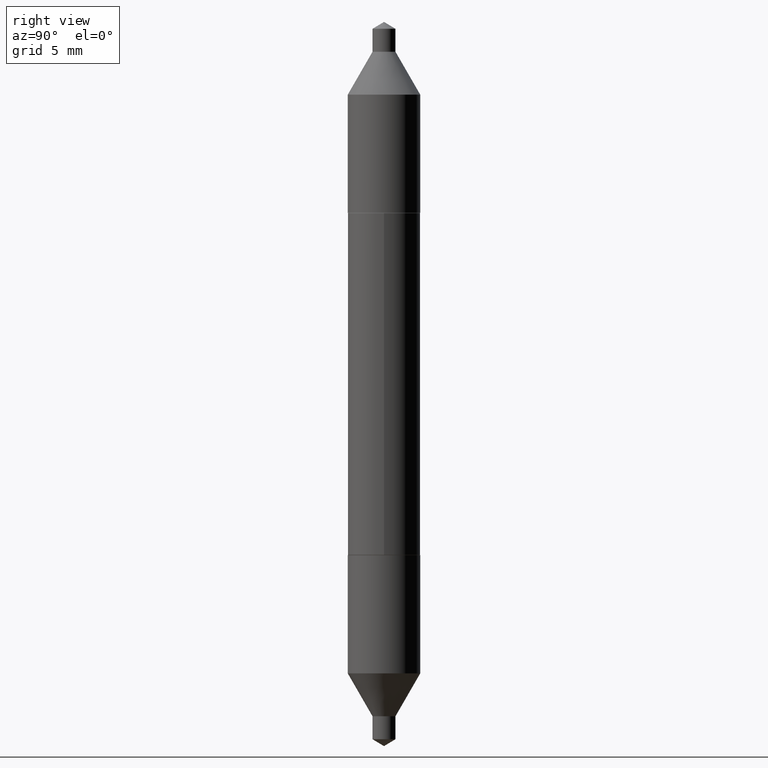
[diagram: clean part render]
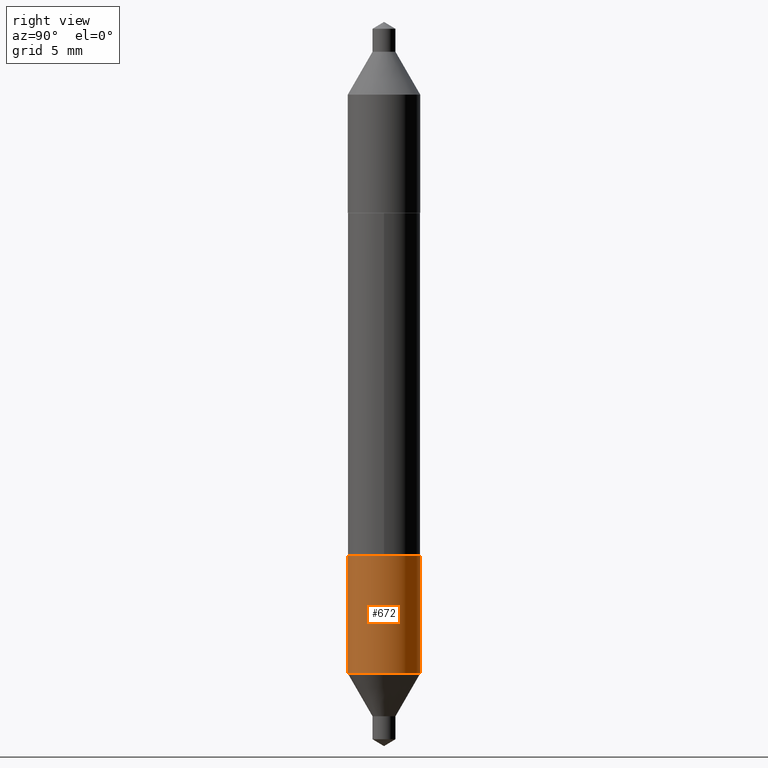
[diagram: same view with one face highlighted and labeled with its STEP entity id]
A machine part, right view. The second image highlights one B-rep face of the part: STEP entity #672.
In plain terms, the highlighted cylindrical surface (edge-blend (fillet) strip) has radius 1.5748 mm, axis along (-0, 0, 1).
Its self-contained STEP definition (entity closure, byte-faithful):
#22 = DIRECTION ( 'NONE',  ( -2.479466242758017580E-29, 3.442795074656859264E-15, 1.000000000000000000 ) ) ;
#47 = CARTESIAN_POINT ( 'NONE',  ( -4.329436860165412667E-16, -0.06200000000000101957, -0.2929999999999997051 ) ) ;
#49 = EDGE_CURVE ( 'NONE', #146, #595, #227, .T. ) ;
#82 = DIRECTION ( 'NONE',  ( -6.982962677686265922E-15, -1.000000000000000000, 3.304654831045479808E-15 ) ) ;
#92 = DIRECTION ( 'NONE',  ( -2.479466242758017580E-29, 3.442795074656859264E-15, 1.000000000000000000 ) ) ;
#99 = DIRECTION ( 'NONE',  ( -2.479466242758017580E-29, 3.442795074656859264E-15, 1.000000000000000000 ) ) ;
#137 = EDGE_CURVE ( 'NONE', #513, #355, #307, .T. ) ;
#142 = CIRCLE ( 'NONE', #605, 0.06199999999999999956 ) ;
#145 = DIRECTION ( 'NONE',  ( -2.479466242758017580E-29, 3.442795074656859264E-15, 1.000000000000000000 ) ) ;
#146 = VERTEX_POINT ( 'NONE', #679 ) ;
#179 = EDGE_LOOP ( 'NONE', ( #687, #402, #546, #221 ) ) ;
#190 = AXIS2_PLACEMENT_3D ( 'NONE', #200, #294, #82 ) ;
#200 = CARTESIAN_POINT ( 'NONE',  ( 7.165223602122447572E-30, -1.023004032281041126E-15, -0.2929999999999998717 ) ) ;
#220 = CARTESIAN_POINT ( 'NONE',  ( 4.405364961712692118E-16, 0.06199999999999897260, -0.2930000000000000937 ) ) ;
#221 = ORIENTED_EDGE ( 'NONE', *, *, #137, .F. ) ;
#227 = LINE ( 'NONE', #220, #589 ) ;
#255 = DIRECTION ( 'NONE',  ( -6.982962677686265922E-15, -1.000000000000000000, 3.304654831045479413E-15 ) ) ;
#293 = VECTOR ( 'NONE', #145, 39.37007874015748143 ) ;
#294 = DIRECTION ( 'NONE',  ( -2.479466242758017580E-29, 3.442795074656859264E-15, 1.000000000000000000 ) ) ;
#307 = LINE ( 'NONE', #47, #293 ) ;
#342 = EDGE_CURVE ( 'NONE', #355, #595, #142, .T. ) ;
#355 = VERTEX_POINT ( 'NONE', #648 ) ;
#402 = ORIENTED_EDGE ( 'NONE', *, *, #49, .T. ) ;
#457 = CIRCLE ( 'NONE', #552, 0.06200000000000000649 ) ;
#472 = DIRECTION ( 'NONE',  ( -6.982962677686265922E-15, -1.000000000000000000, 3.304654831045479808E-15 ) ) ;
#513 = VERTEX_POINT ( 'NONE', #543 ) ;
#543 = CARTESIAN_POINT ( 'NONE',  ( -4.329436860165363363E-16, -0.06200000000000172734, -0.4955342508398351553 ) ) ;
#546 = ORIENTED_EDGE ( 'NONE', *, *, #342, .F. ) ;
#552 = AXIS2_PLACEMENT_3D ( 'NONE', #625, #92, #255 ) ;
#564 = CARTESIAN_POINT ( 'NONE',  ( 4.405364961712740929E-16, 0.06199999999999896566, -0.2930000000000000937 ) ) ;
#586 = CARTESIAN_POINT ( 'NONE',  ( 7.165223602122447572E-30, -1.023004032281041126E-15, -0.2929999999999998717 ) ) ;
#589 = VECTOR ( 'NONE', #22, 39.37007874015748143 ) ;
#595 = VERTEX_POINT ( 'NONE', #564 ) ;
#605 = AXIS2_PLACEMENT_3D ( 'NONE', #586, #99, #472 ) ;
#616 = CYLINDRICAL_SURFACE ( 'NONE', #190, 0.06199999999999999956 ) ;
#625 = CARTESIAN_POINT ( 'NONE',  ( 1.218699198171901377E-29, -1.720287953521743854E-15, -0.4955342508398353774 ) ) ;
#642 = EDGE_CURVE ( 'NONE', #513, #146, #457, .T. ) ;
#648 = CARTESIAN_POINT ( 'NONE',  ( -4.329436860165412667E-16, -0.06200000000000101957, -0.2929999999999997051 ) ) ;
#672 = ADVANCED_FACE ( 'NONE', ( #682 ), #616, .T. ) ;
#679 = CARTESIAN_POINT ( 'NONE',  ( 4.405364961712718249E-16, 0.06199999999999829259, -0.4955342508398355439 ) ) ;
#682 = FACE_OUTER_BOUND ( 'NONE', #179, .T. ) ;
#687 = ORIENTED_EDGE ( 'NONE', *, *, #642, .T. ) ;